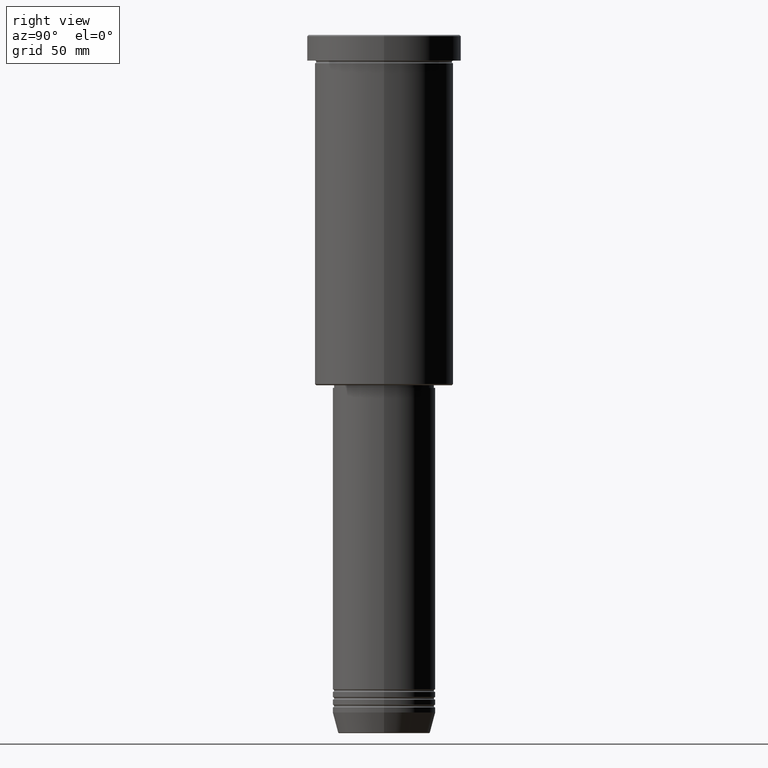
[diagram: clean part render]
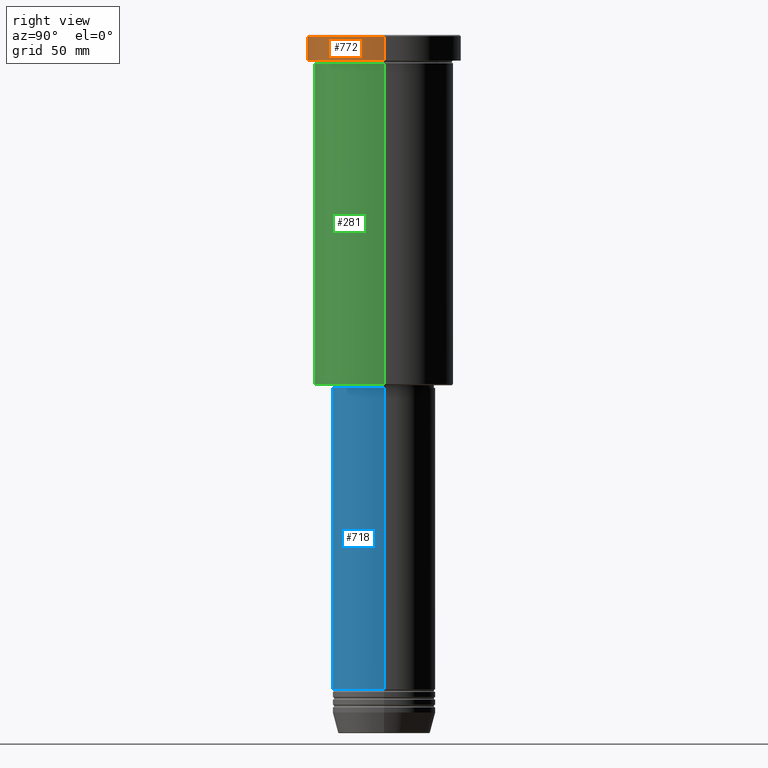
[diagram: same view with three faces highlighted in distinct colors, each labeled with its STEP entity id]
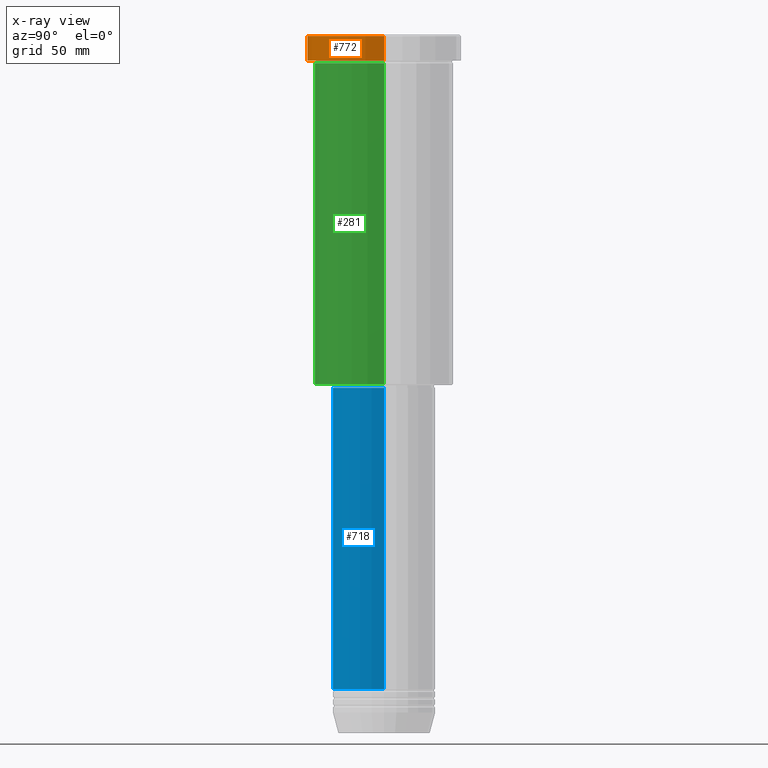
[diagram: x-ray of the same camera — body ghosted, the three highlighted faces saturated]
A machine part, right view with three faces highlighted in distinct colors.
The next image is the same camera in x-ray (body ghosted, the three faces saturated) — at least one of them is partly hidden behind the body in this view.
Their STEP definitions:

[orange] entity #772 — the highlighted cylindrical surface (partial cylindrical patch) has radius 30 mm, axis along (-0, -0, 1).
#45 = VERTEX_POINT ( 'NONE', #314 ) ;
#48 = CYLINDRICAL_SURFACE ( 'NONE', #63, 30.00000000000000000 ) ;
#63 = AXIS2_PLACEMENT_3D ( 'NONE', #871, #132, #1124 ) ;
#67 = DIRECTION ( 'NONE',  ( 1.000000000000000000, 0.000000000000000000, 0.000000000000000000 ) ) ;
#96 = DIRECTION ( 'NONE',  ( 1.000000000000000000, 0.000000000000000000, 0.000000000000000000 ) ) ;
#132 = DIRECTION ( 'NONE',  ( -0.000000000000000000, -0.000000000000000000, 1.000000000000000000 ) ) ;
#170 = AXIS2_PLACEMENT_3D ( 'NONE', #269, #741, #96 ) ;
#203 = CARTESIAN_POINT ( 'NONE',  ( 30.00000000000000000, 0.000000000000000000, 0.000000000000000000 ) ) ;
#269 = CARTESIAN_POINT ( 'NONE',  ( 0.000000000000000000, 0.000000000000000000, -0.4999999999999796274 ) ) ;
#314 = CARTESIAN_POINT ( 'NONE',  ( 30.00000000000000000, 0.000000000000000000, -9.999999999999992895 ) ) ;
#325 = VERTEX_POINT ( 'NONE', #665 ) ;
#505 = FACE_OUTER_BOUND ( 'NONE', #797, .T. ) ;
#520 = VERTEX_POINT ( 'NONE', #992 ) ;
#531 = VECTOR ( 'NONE', #586, 1000.000000000000000 ) ;
#578 = ORIENTED_EDGE ( 'NONE', *, *, #681, .T. ) ;
#586 = DIRECTION ( 'NONE',  ( -0.000000000000000000, -0.000000000000000000, 1.000000000000000000 ) ) ;
#665 = CARTESIAN_POINT ( 'NONE',  ( -30.00000000000000000, 3.673940397442059178E-15, -0.4999999999999796274 ) ) ;
#678 = DIRECTION ( 'NONE',  ( -0.000000000000000000, -0.000000000000000000, 1.000000000000000000 ) ) ;
#681 = EDGE_CURVE ( 'NONE', #775, #325, #687, .T. ) ;
#687 = CIRCLE ( 'NONE', #170, 30.00000000000000000 ) ;
#741 = DIRECTION ( 'NONE',  ( 0.000000000000000000, 0.000000000000000000, -1.000000000000000000 ) ) ;
#760 = ORIENTED_EDGE ( 'NONE', *, *, #1148, .T. ) ;
#772 = ADVANCED_FACE ( 'NONE', ( #505 ), #48, .T. ) ;
#775 = VERTEX_POINT ( 'NONE', #948 ) ;
#797 = EDGE_LOOP ( 'NONE', ( #1117, #811, #760, #578 ) ) ;
#804 = AXIS2_PLACEMENT_3D ( 'NONE', #1156, #1071, #67 ) ;
#806 = VECTOR ( 'NONE', #678, 1000.000000000000000 ) ;
#811 = ORIENTED_EDGE ( 'NONE', *, *, #917, .T. ) ;
#825 = CIRCLE ( 'NONE', #804, 30.00000000000000000 ) ;
#856 = CARTESIAN_POINT ( 'NONE',  ( -30.00000000000000000, 3.673940397442059178E-15, 0.000000000000000000 ) ) ;
#868 = LINE ( 'NONE', #856, #531 ) ;
#871 = CARTESIAN_POINT ( 'NONE',  ( 0.000000000000000000, 0.000000000000000000, 0.000000000000000000 ) ) ;
#917 = EDGE_CURVE ( 'NONE', #520, #45, #825, .T. ) ;
#948 = CARTESIAN_POINT ( 'NONE',  ( 30.00000000000000000, 0.000000000000000000, -0.4999999999999796274 ) ) ;
#992 = CARTESIAN_POINT ( 'NONE',  ( -30.00000000000000000, 3.673940397442059178E-15, -9.999999999999992895 ) ) ;
#1023 = LINE ( 'NONE', #203, #806 ) ;
#1024 = EDGE_CURVE ( 'NONE', #520, #325, #868, .T. ) ;
#1071 = DIRECTION ( 'NONE',  ( -0.000000000000000000, -0.000000000000000000, 1.000000000000000000 ) ) ;
#1117 = ORIENTED_EDGE ( 'NONE', *, *, #1024, .F. ) ;
#1124 = DIRECTION ( 'NONE',  ( 1.000000000000000000, 0.000000000000000000, 0.000000000000000000 ) ) ;
#1148 = EDGE_CURVE ( 'NONE', #45, #775, #1023, .T. ) ;
#1156 = CARTESIAN_POINT ( 'NONE',  ( 0.000000000000000000, 0.000000000000000000, -9.999999999999992895 ) ) ;

[blue] entity #718 — the highlighted cylindrical surface (partial cylindrical patch) has radius 20 mm, axis along (-0, -0, 1).
#4 = ORIENTED_EDGE ( 'NONE', *, *, #691, .T. ) ;
#13 = CARTESIAN_POINT ( 'NONE',  ( 20.00000000000000000, 0.000000000000000000, 0.000000000000000000 ) ) ;
#20 = ORIENTED_EDGE ( 'NONE', *, *, #130, .T. ) ;
#21 = DIRECTION ( 'NONE',  ( -0.000000000000000000, -0.000000000000000000, 1.000000000000000000 ) ) ;
#32 = CARTESIAN_POINT ( 'NONE',  ( -20.00000000000000000, 2.449293598294706513E-15, -137.0000000000000000 ) ) ;
#78 = VECTOR ( 'NONE', #21, 1000.000000000000000 ) ;
#89 = DIRECTION ( 'NONE',  ( -0.000000000000000000, -0.000000000000000000, 1.000000000000000000 ) ) ;
#130 = EDGE_CURVE ( 'NONE', #630, #613, #644, .T. ) ;
#160 = LINE ( 'NONE', #622, #78 ) ;
#178 = CYLINDRICAL_SURFACE ( 'NONE', #726, 20.00000000000000000 ) ;
#188 = DIRECTION ( 'NONE',  ( 1.000000000000000000, 0.000000000000000000, 0.000000000000000000 ) ) ;
#212 = CIRCLE ( 'NONE', #397, 20.00000000000000000 ) ;
#275 = DIRECTION ( 'NONE',  ( 1.000000000000000000, 0.000000000000000000, 0.000000000000000000 ) ) ;
#282 = DIRECTION ( 'NONE',  ( -0.000000000000000000, -0.000000000000000000, 1.000000000000000000 ) ) ;
#320 = AXIS2_PLACEMENT_3D ( 'NONE', #598, #282, #275 ) ;
#397 = AXIS2_PLACEMENT_3D ( 'NONE', #1043, #479, #500 ) ;
#423 = ORIENTED_EDGE ( 'NONE', *, *, #638, .F. ) ;
#424 = CARTESIAN_POINT ( 'NONE',  ( -20.00000000000000000, 2.449293598294706513E-15, -254.0000000000000000 ) ) ;
#451 = VECTOR ( 'NONE', #1012, 1000.000000000000000 ) ;
#479 = DIRECTION ( 'NONE',  ( -0.000000000000000000, -0.000000000000000000, 1.000000000000000000 ) ) ;
#500 = DIRECTION ( 'NONE',  ( 1.000000000000000000, 0.000000000000000000, 0.000000000000000000 ) ) ;
#509 = CARTESIAN_POINT ( 'NONE',  ( 20.00000000000000000, 0.000000000000000000, -137.0000000000000000 ) ) ;
#598 = CARTESIAN_POINT ( 'NONE',  ( 0.000000000000000000, 0.000000000000000000, -254.0000000000000000 ) ) ;
#613 = VERTEX_POINT ( 'NONE', #980 ) ;
#622 = CARTESIAN_POINT ( 'NONE',  ( -20.00000000000000000, 2.449293598294706513E-15, 0.000000000000000000 ) ) ;
#630 = VERTEX_POINT ( 'NONE', #424 ) ;
#638 = EDGE_CURVE ( 'NONE', #630, #1003, #160, .T. ) ;
#644 = CIRCLE ( 'NONE', #320, 20.00000000000000000 ) ;
#691 = EDGE_CURVE ( 'NONE', #613, #949, #933, .T. ) ;
#718 = ADVANCED_FACE ( 'NONE', ( #910 ), #178, .T. ) ;
#726 = AXIS2_PLACEMENT_3D ( 'NONE', #1028, #89, #188 ) ;
#848 = EDGE_CURVE ( 'NONE', #1003, #949, #212, .T. ) ;
#910 = FACE_OUTER_BOUND ( 'NONE', #991, .T. ) ;
#933 = LINE ( 'NONE', #13, #451 ) ;
#949 = VERTEX_POINT ( 'NONE', #509 ) ;
#980 = CARTESIAN_POINT ( 'NONE',  ( 20.00000000000000000, 0.000000000000000000, -254.0000000000000000 ) ) ;
#991 = EDGE_LOOP ( 'NONE', ( #423, #20, #4, #1134 ) ) ;
#1003 = VERTEX_POINT ( 'NONE', #32 ) ;
#1012 = DIRECTION ( 'NONE',  ( -0.000000000000000000, -0.000000000000000000, 1.000000000000000000 ) ) ;
#1028 = CARTESIAN_POINT ( 'NONE',  ( 0.000000000000000000, 0.000000000000000000, 0.000000000000000000 ) ) ;
#1043 = CARTESIAN_POINT ( 'NONE',  ( 0.000000000000000000, 0.000000000000000000, -137.0000000000000000 ) ) ;
#1134 = ORIENTED_EDGE ( 'NONE', *, *, #848, .F. ) ;

[green] entity #281 — the highlighted cylindrical surface (partial cylindrical patch) has radius 27 mm, axis along (-0, -0, 1).
#14 = DIRECTION ( 'NONE',  ( -1.000000000000000000, 0.000000000000000000, 0.000000000000000000 ) ) ;
#28 = DIRECTION ( 'NONE',  ( -0.000000000000000000, -0.000000000000000000, 1.000000000000000000 ) ) ;
#84 = CARTESIAN_POINT ( 'NONE',  ( 27.00000000000000355, 0.000000000000000000, -135.4999999999999432 ) ) ;
#114 = CIRCLE ( 'NONE', #783, 27.00000000000000355 ) ;
#125 = CARTESIAN_POINT ( 'NONE',  ( -27.00000000000000355, 3.306546357697854128E-15, -135.4999999999999432 ) ) ;
#129 = LINE ( 'NONE', #861, #866 ) ;
#134 = CIRCLE ( 'NONE', #513, 27.00000000000000355 ) ;
#147 = ORIENTED_EDGE ( 'NONE', *, *, #1100, .F. ) ;
#202 = CARTESIAN_POINT ( 'NONE',  ( 0.000000000000000000, 0.000000000000000000, -135.4999999999999432 ) ) ;
#207 = CARTESIAN_POINT ( 'NONE',  ( 27.00000000000000355, 0.000000000000000000, 0.000000000000000000 ) ) ;
#214 = VERTEX_POINT ( 'NONE', #738 ) ;
#280 = DIRECTION ( 'NONE',  ( -0.000000000000000000, -0.000000000000000000, 1.000000000000000000 ) ) ;
#281 = ADVANCED_FACE ( 'NONE', ( #754 ), #844, .T. ) ;
#312 = VERTEX_POINT ( 'NONE', #125 ) ;
#337 = AXIS2_PLACEMENT_3D ( 'NONE', #1122, #28, #852 ) ;
#404 = DIRECTION ( 'NONE',  ( -0.000000000000000000, -0.000000000000000000, 1.000000000000000000 ) ) ;
#409 = ORIENTED_EDGE ( 'NONE', *, *, #809, .T. ) ;
#410 = DIRECTION ( 'NONE',  ( -0.000000000000000000, -0.000000000000000000, 1.000000000000000000 ) ) ;
#411 = EDGE_CURVE ( 'NONE', #312, #542, #134, .T. ) ;
#463 = EDGE_CURVE ( 'NONE', #214, #913, #114, .T. ) ;
#483 = ORIENTED_EDGE ( 'NONE', *, *, #411, .T. ) ;
#513 = AXIS2_PLACEMENT_3D ( 'NONE', #202, #757, #14 ) ;
#523 = EDGE_LOOP ( 'NONE', ( #147, #483, #409, #727 ) ) ;
#542 = VERTEX_POINT ( 'NONE', #84 ) ;
#593 = VECTOR ( 'NONE', #410, 1000.000000000000000 ) ;
#643 = DIRECTION ( 'NONE',  ( 1.000000000000000000, 0.000000000000000000, 0.000000000000000000 ) ) ;
#727 = ORIENTED_EDGE ( 'NONE', *, *, #463, .F. ) ;
#738 = CARTESIAN_POINT ( 'NONE',  ( -27.00000000000000355, 3.306546357697854128E-15, -10.99999999999999289 ) ) ;
#754 = FACE_OUTER_BOUND ( 'NONE', #523, .T. ) ;
#757 = DIRECTION ( 'NONE',  ( -0.000000000000000000, -0.000000000000000000, 1.000000000000000000 ) ) ;
#771 = LINE ( 'NONE', #207, #593 ) ;
#783 = AXIS2_PLACEMENT_3D ( 'NONE', #830, #280, #643 ) ;
#809 = EDGE_CURVE ( 'NONE', #542, #913, #771, .T. ) ;
#830 = CARTESIAN_POINT ( 'NONE',  ( 0.000000000000000000, 0.000000000000000000, -10.99999999999999289 ) ) ;
#844 = CYLINDRICAL_SURFACE ( 'NONE', #337, 27.00000000000000355 ) ;
#852 = DIRECTION ( 'NONE',  ( 1.000000000000000000, 0.000000000000000000, 0.000000000000000000 ) ) ;
#861 = CARTESIAN_POINT ( 'NONE',  ( -27.00000000000000355, 3.306546357697854128E-15, 0.000000000000000000 ) ) ;
#866 = VECTOR ( 'NONE', #404, 1000.000000000000000 ) ;
#913 = VERTEX_POINT ( 'NONE', #1138 ) ;
#1100 = EDGE_CURVE ( 'NONE', #312, #214, #129, .T. ) ;
#1122 = CARTESIAN_POINT ( 'NONE',  ( 0.000000000000000000, 0.000000000000000000, 0.000000000000000000 ) ) ;
#1138 = CARTESIAN_POINT ( 'NONE',  ( 27.00000000000000355, 0.000000000000000000, -10.99999999999999289 ) ) ;